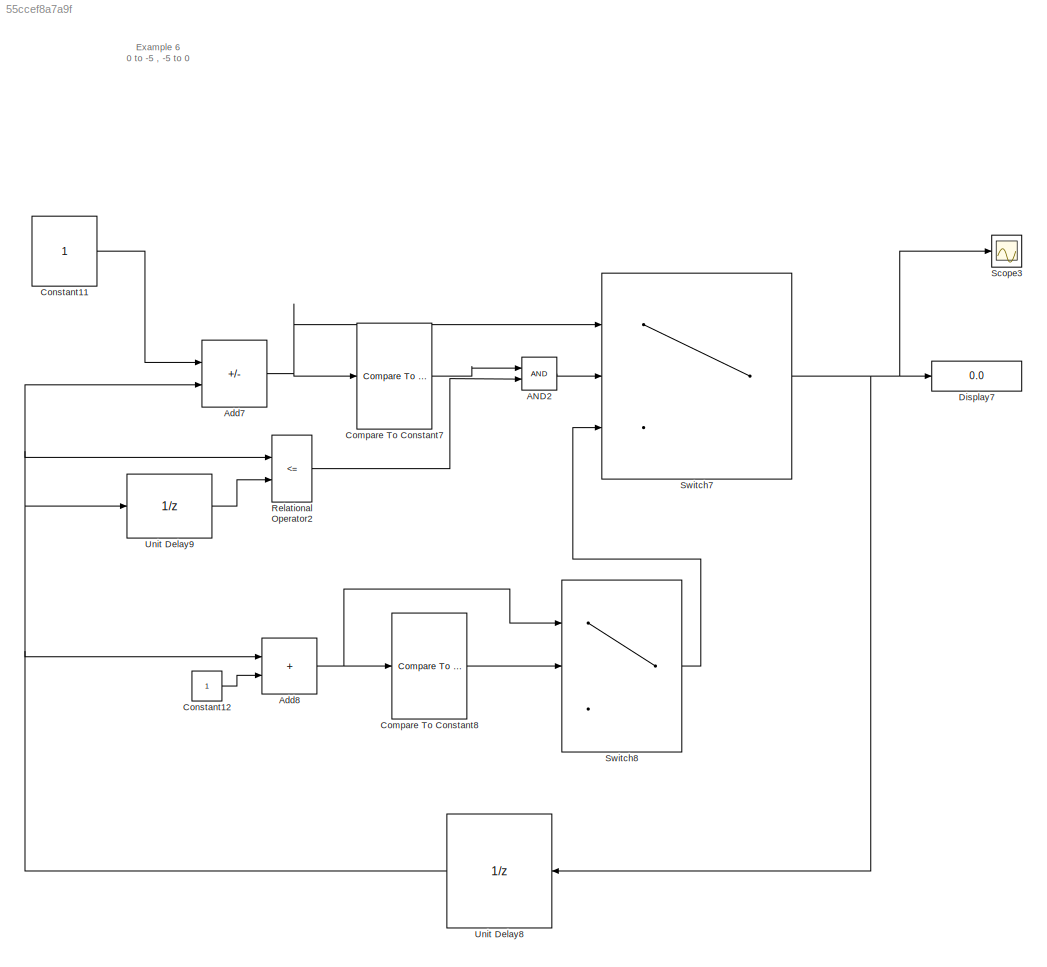
MODEL slx_55ccef8a7a9f
KIND model
CONFIG AbsTol = auto
CONFIG EnableMultiTasking = off
CONFIG FixedStep = auto
CONFIG MaxStep = auto
CONFIG MinStep = auto
CONFIG RelTol = 1e-3
CONFIG SampleTimeConstraint = Unconstrained
CONFIG Solver = VariableStepAuto
CONFIG SolverName = VariableStepAuto
CONFIG StartTime = 0.0
CONFIG StopTime = 10.0
BLOCK [Logic] AND2
  AllPortsSameDT = off
  OutDataTypeStr = boolean
  Ports = [2, 1]
BLOCK [Sum] Add7
  IconShape = rectangular
  Inputs = -+
  Ports = [2, 1]
BLOCK [Sum] Add8
  IconShape = rectangular
  Ports = [2, 1]
BLOCK [Reference] Compare To Constant7  REF=simulink/Logic and Bit
Operations/Compare
To Constant
  Ports = [1, 1]
  SourceBlock = simulink/Logic and Bit\nOperations/Compare\nTo Constant
  SourceProductBaseCode = SL
  SourceType = Compare To Constant
BLOCK [Reference] Compare To Constant8  REF=simulink/Logic and Bit
Operations/Compare
To Constant
  Ports = [1, 1]
  SourceBlock = simulink/Logic and Bit\nOperations/Compare\nTo Constant
  SourceProductBaseCode = SL
  SourceType = Compare To Constant
BLOCK [Constant] Constant11
BLOCK [Constant] Constant12
BLOCK [Display] Display7
  Decimation = 1
  Ports = [1]
BLOCK [RelationalOperator] Relational Operator2
  InputSameDT = off
  Operator = <=
  OutDataTypeStr = boolean
  Ports = [2, 1]
  RndMeth = Simplest
BLOCK [Scope] Scope3
  Floating = off
  NumInputPorts = 1
  Ports = [1]
  ScopeSpecificationString = Simulink.scopes.TimeScopeBlockCfg('CurrentConfiguration', extmgr.ConfigurationSet(extmgr.Configuration('Core','General UI',true),extmgr.Configuration('Core','Source UI',true),extmgr.Configuration('Sources','WiredSimulink',true),extmgr.Configuration('Visuals','Time Domain',true,'SerializedDisplays',{struct('MinYLimReal','-5.625','MaxYLimReal','0.625','YLabelReal','','MinYLimMag','0.00000','MaxYLimM...<+1348ch>
BLOCK [Switch] Switch7
  Criteria = u2 > Threshold
  InputSameDT = off
  SaturateOnIntegerOverflow = off
BLOCK [Switch] Switch8
  Criteria = u2 > Threshold
  InputSameDT = off
  SaturateOnIntegerOverflow = off
BLOCK [UnitDelay] Unit Delay8
  HasFrameUpgradeWarning = on
  InitialCondition = 1
  SampleTime = -1
BLOCK [UnitDelay] Unit Delay9
  HasFrameUpgradeWarning = on
  InitialCondition = 1
  SampleTime = -1
ANNOTATION (root): Example 6 0 to -5 , -5 to 0
LINE AND2:1 -> Switch7:2
NET Add7:1 -> Compare To Constant7:1, Switch7:1
NET Add8:1 -> Compare To Constant8:1, Switch8:1
LINE Compare To Constant7:1 -> AND2:1
LINE Compare To Constant8:1 -> Switch8:2
LINE Constant11:1 -> Add7:1
LINE Constant12:1 -> Add8:2
LINE Relational Operator2:1 -> AND2:2
NET Switch7:1 -> Display7:1, Scope3:1, Unit Delay8:1
LINE Switch8:1 -> Switch7:3
NET Unit Delay8:1 -> Add7:2, Add8:1, Relational Operator2:1, Unit Delay9:1
LINE Unit Delay9:1 -> Relational Operator2:2
note: NET lines group one-source signal fan-out (src -> all destinations, sorted); 1:1 wires keep LINE
